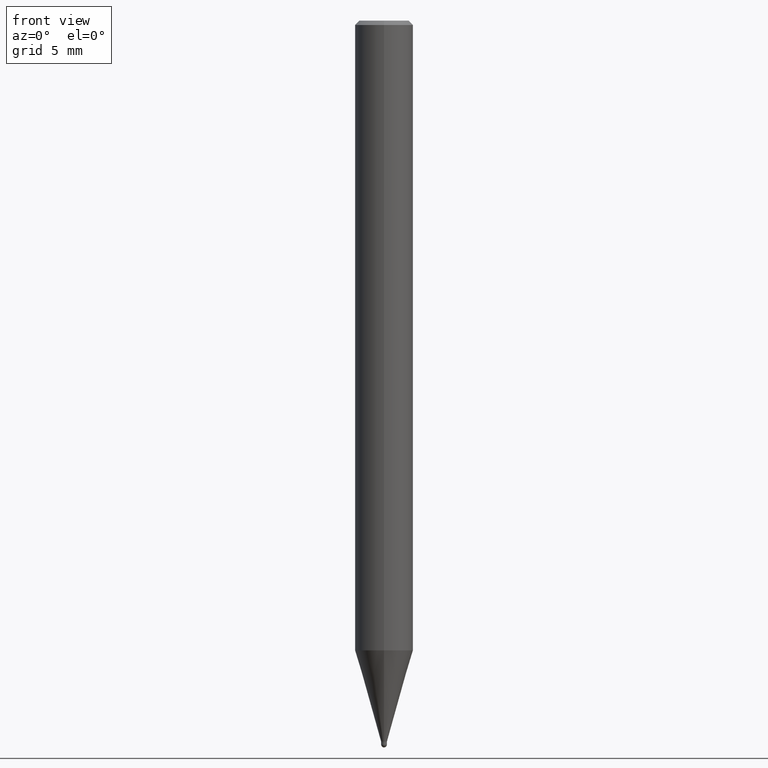
[diagram: clean part render]
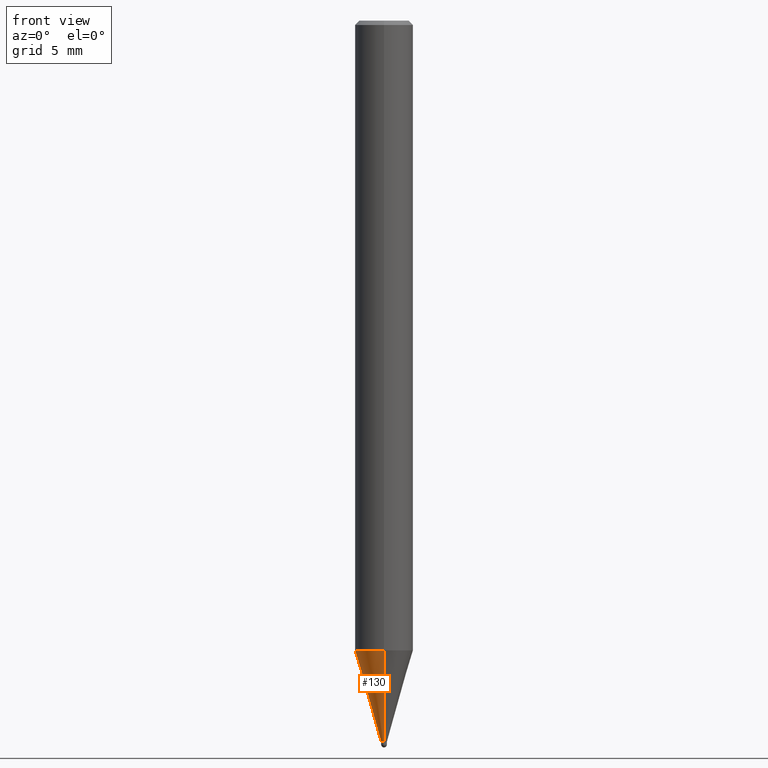
[diagram: same view with one face highlighted and labeled with its STEP entity id]
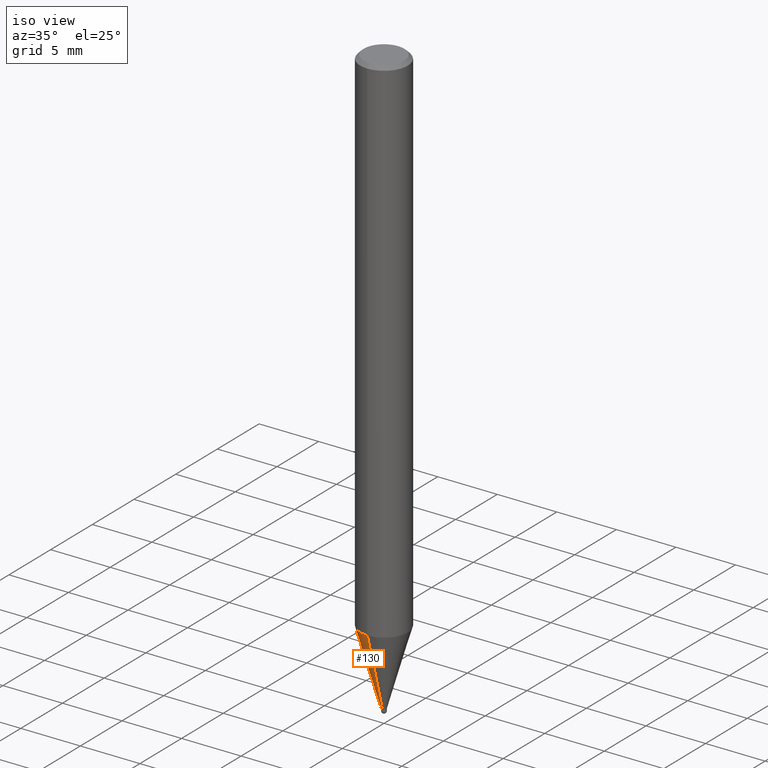
[diagram: same view with one face highlighted and labeled with its STEP entity id]
A machine part, front view. The second image highlights one B-rep face of the part: STEP entity #130.
A second angle (iso view) of the same face is appended — the face is thin or edge-on in the first view.
In plain terms, the highlighted conical surface has half-angle 16.001 deg.
Its self-contained STEP definition (entity closure, byte-faithful):
#94=VERTEX_POINT('',#221);
#110=VERTEX_POINT('',#237);
#130=ADVANCED_FACE('',(#257),#258,.T.);
#132=VERTEX_POINT('',#260);
#134=EDGE_CURVE('',#132,#110,#262,.T.);
#136=EDGE_CURVE('',#94,#132,#264,.T.);
#152=EDGE_CURVE('',#110,#188,#283,.T.);
#180=EDGE_CURVE('',#94,#188,#317,.T.);
#188=VERTEX_POINT('',#327);
#221=CARTESIAN_POINT('',(2.44860040446785E-017,-0.19995,-49.6));
#237=CARTESIAN_POINT('',(0.0,1.99995,-43.323));
#257=FACE_OUTER_BOUND('',#399,.T.);
#258=CONICAL_SURFACE('',#400,1.09995,0.279267285283396);
#260=CARTESIAN_POINT('',(2.44915147732706E-016,-1.99995,-43.323));
#262=CIRCLE('',#405,1.99995);
#264=LINE('',#408,#409);
#283=LINE('',#434,#435);
#317=CIRCLE('',#477,0.19995);
#327=CARTESIAN_POINT('',(0.0,0.19995,-49.6));
#399=EDGE_LOOP('',(#531,#532,#533,#534));
#400=AXIS2_PLACEMENT_3D('',#535,#536,#537);
#405=AXIS2_PLACEMENT_3D('',#538,#539,#540);
#408=CARTESIAN_POINT('',(1.34700575888692E-016,-1.09995,-46.4615));
#409=VECTOR('',#541,1.0);
#434=CARTESIAN_POINT('',(-1.34700575888692E-016,1.09995,-46.4615));
#435=VECTOR('',#569,1.0);
#477=AXIS2_PLACEMENT_3D('',#620,#621,#622);
#531=ORIENTED_EDGE('',*,*,#152,.T.);
#532=ORIENTED_EDGE('',*,*,#180,.F.);
#533=ORIENTED_EDGE('',*,*,#136,.T.);
#534=ORIENTED_EDGE('',*,*,#134,.T.);
#535=CARTESIAN_POINT('',(0.0,0.0,-46.4615));
#536=DIRECTION('',(-0.0,-0.0,1.0));
#537=DIRECTION('',(0.0,1.0,0.0));
#538=CARTESIAN_POINT('',(0.0,0.0,-43.323));
#539=DIRECTION('',(0.0,0.0,-1.0));
#540=DIRECTION('',(0.0,1.0,0.0));
#541=DIRECTION('',(3.37564449732947E-017,-0.275651394980357,0.961257670162056));
#569=DIRECTION('',(3.37564449732947E-017,-0.275651394980357,-0.961257670162056));
#620=CARTESIAN_POINT('',(0.0,0.0,-49.6));
#621=DIRECTION('',(0.0,0.0,-1.0));
#622=DIRECTION('',(0.0,1.0,0.0));